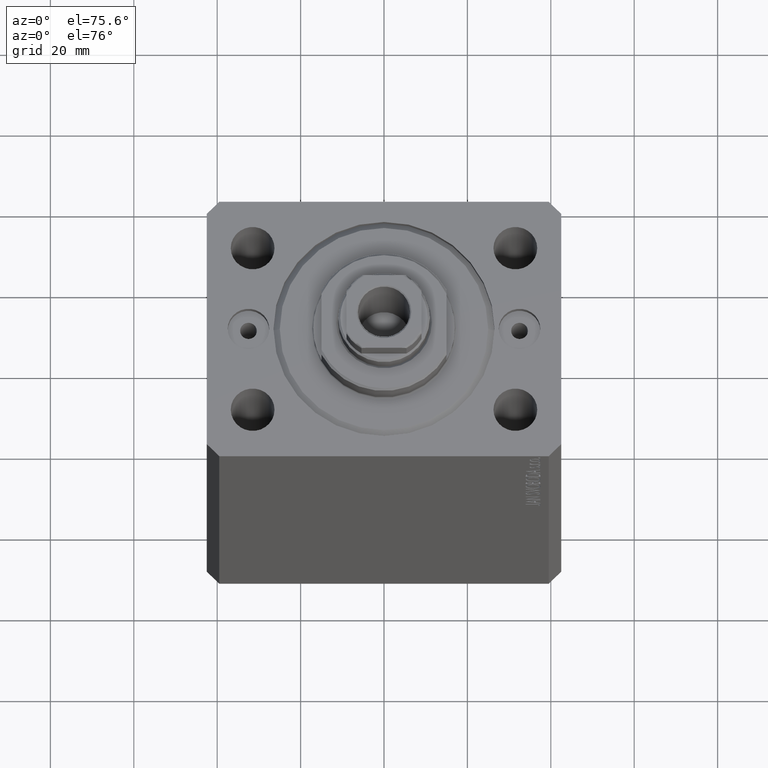
[diagram: clean part render]
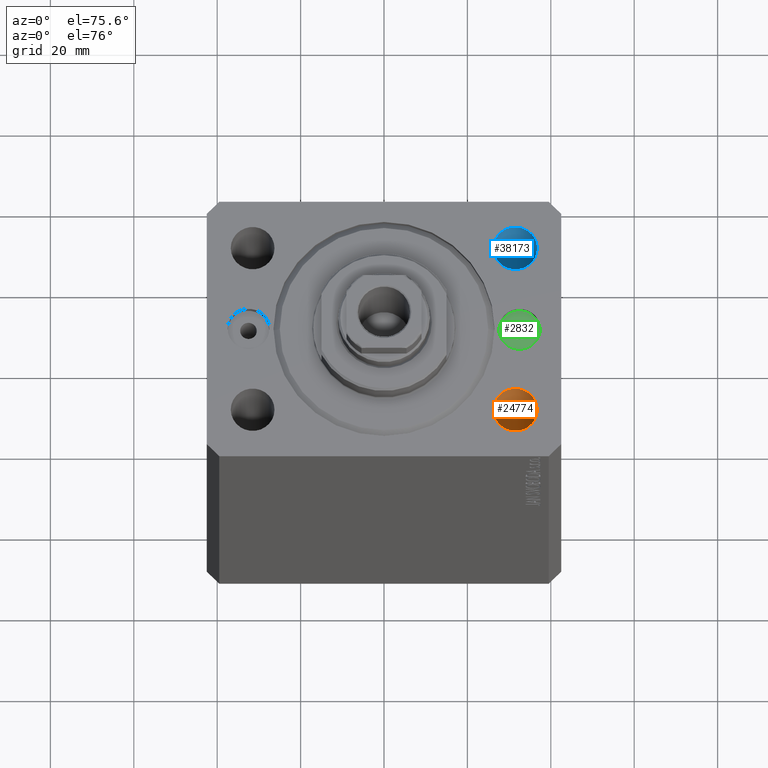
[diagram: same view with three faces highlighted in distinct colors, each labeled with its STEP entity id]
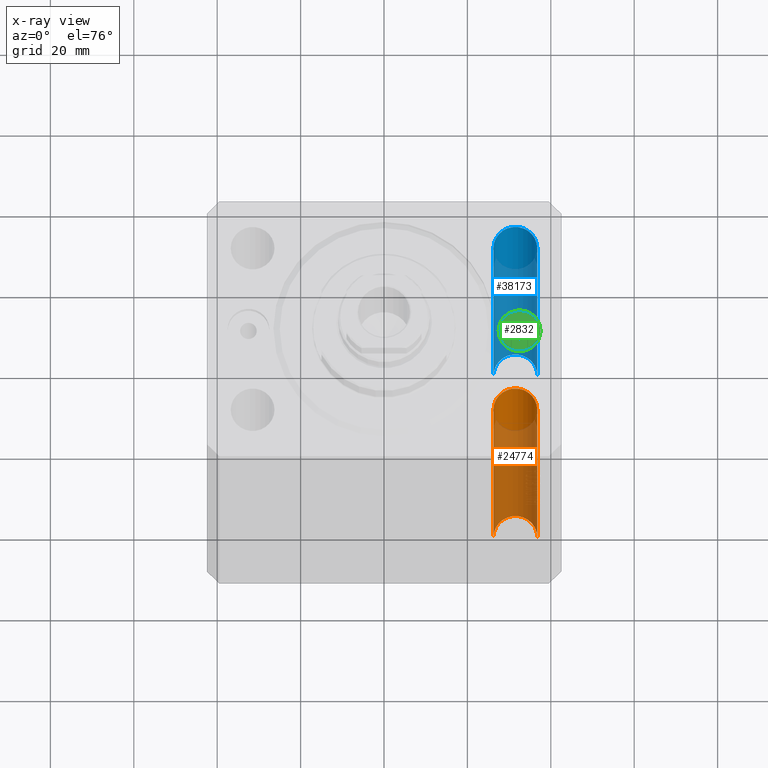
[diagram: x-ray of the same camera — body ghosted, the three highlighted faces saturated]
A machine part, auxiliary view with three faces highlighted in distinct colors.
The next image is the same camera in x-ray (body ghosted, the three faces saturated) — at least one of them is partly hidden behind the body in this view.
Their STEP definitions:

[orange] entity #24774 — the highlighted cylindrical surface (edge-blend (fillet) strip) has radius 5.25 mm, axis along (0, 0, 1).
#197 = DIRECTION ( 'NONE',  ( 1.000000000000000000, 0.000000000000000000, 0.000000000000000000 ) ) ;
#1539 = CARTESIAN_POINT ( 'NONE',  ( 26.24999999999999645, -20.00000000000000355, -123.0000000000000000 ) ) ;
#1737 = DIRECTION ( 'NONE',  ( 1.000000000000000000, 0.000000000000000000, 0.000000000000000000 ) ) ;
#1887 = EDGE_LOOP ( 'NONE', ( #37694, #42213, #8697, #4217 ) ) ;
#2566 = VERTEX_POINT ( 'NONE', #43569 ) ;
#3107 = CARTESIAN_POINT ( 'NONE',  ( 31.49999999999999289, -20.00000000000000355, -123.0000000000000000 ) ) ;
#3392 = CIRCLE ( 'NONE', #43492, 5.249999999999997335 ) ;
#4217 = ORIENTED_EDGE ( 'NONE', *, *, #24132, .T. ) ;
#4663 = VERTEX_POINT ( 'NONE', #25525 ) ;
#5321 = FACE_OUTER_BOUND ( 'NONE', #1887, .T. ) ;
#7698 = LINE ( 'NONE', #20707, #30018 ) ;
#8344 = CARTESIAN_POINT ( 'NONE',  ( 36.74999999999999289, -20.00000000000000355, 0.000000000000000000 ) ) ;
#8477 = DIRECTION ( 'NONE',  ( -0.000000000000000000, -0.000000000000000000, 1.000000000000000000 ) ) ;
#8697 = ORIENTED_EDGE ( 'NONE', *, *, #29724, .T. ) ;
#8698 = CYLINDRICAL_SURFACE ( 'NONE', #11543, 5.249999999999997335 ) ;
#8923 = CARTESIAN_POINT ( 'NONE',  ( 31.49999999999999289, -20.00000000000000355, -137.8492424049174758 ) ) ;
#9036 = DIRECTION ( 'NONE',  ( 0.000000000000000000, 0.000000000000000000, 1.000000000000000000 ) ) ;
#11543 = AXIS2_PLACEMENT_3D ( 'NONE', #8923, #8477, #1737 ) ;
#12734 = DIRECTION ( 'NONE',  ( -0.000000000000000000, -0.000000000000000000, 1.000000000000000000 ) ) ;
#16214 = EDGE_CURVE ( 'NONE', #31899, #4663, #3392, .T. ) ;
#16792 = DIRECTION ( 'NONE',  ( -0.000000000000000000, -0.000000000000000000, -1.000000000000000000 ) ) ;
#19132 = EDGE_CURVE ( 'NONE', #31899, #2566, #7698, .T. ) ;
#20707 = CARTESIAN_POINT ( 'NONE',  ( 26.24999999999999645, -20.00000000000000355, -137.8492424049174758 ) ) ;
#20926 = DIRECTION ( 'NONE',  ( -0.000000000000000000, -0.000000000000000000, 1.000000000000000000 ) ) ;
#23730 = CIRCLE ( 'NONE', #24440, 5.249999999999997335 ) ;
#24132 = EDGE_CURVE ( 'NONE', #32342, #2566, #23730, .T. ) ;
#24440 = AXIS2_PLACEMENT_3D ( 'NONE', #25845, #9036, #39749 ) ;
#24774 = ADVANCED_FACE ( 'NONE', ( #5321 ), #8698, .F. ) ;
#25525 = CARTESIAN_POINT ( 'NONE',  ( 36.74999999999999289, -20.00000000000000355, -123.0000000000000000 ) ) ;
#25845 = CARTESIAN_POINT ( 'NONE',  ( 31.49999999999999289, -20.00000000000000355, 0.000000000000000000 ) ) ;
#27270 = VECTOR ( 'NONE', #12734, 1000.000000000000000 ) ;
#29724 = EDGE_CURVE ( 'NONE', #4663, #32342, #40299, .T. ) ;
#30018 = VECTOR ( 'NONE', #20926, 1000.000000000000000 ) ;
#31899 = VERTEX_POINT ( 'NONE', #1539 ) ;
#32342 = VERTEX_POINT ( 'NONE', #8344 ) ;
#37694 = ORIENTED_EDGE ( 'NONE', *, *, #19132, .F. ) ;
#39749 = DIRECTION ( 'NONE',  ( 1.000000000000000000, 0.000000000000000000, 0.000000000000000000 ) ) ;
#40299 = LINE ( 'NONE', #40742, #27270 ) ;
#40742 = CARTESIAN_POINT ( 'NONE',  ( 36.74999999999999289, -20.00000000000000355, -137.8492424049174758 ) ) ;
#42213 = ORIENTED_EDGE ( 'NONE', *, *, #16214, .T. ) ;
#43492 = AXIS2_PLACEMENT_3D ( 'NONE', #3107, #16792, #197 ) ;
#43569 = CARTESIAN_POINT ( 'NONE',  ( 26.24999999999999645, -20.00000000000000355, 0.000000000000000000 ) ) ;

[blue] entity #38173 — the highlighted cylindrical surface (edge-blend (fillet) strip) has radius 5.25 mm, axis along (0, 0, 1).
#149 = ORIENTED_EDGE ( 'NONE', *, *, #17084, .F. ) ;
#278 = DIRECTION ( 'NONE',  ( 1.000000000000000000, 0.000000000000000000, 0.000000000000000000 ) ) ;
#4096 = VECTOR ( 'NONE', #32451, 1000.000000000000000 ) ;
#7657 = AXIS2_PLACEMENT_3D ( 'NONE', #20237, #30757, #278 ) ;
#9835 = VECTOR ( 'NONE', #37864, 1000.000000000000000 ) ;
#10786 = EDGE_LOOP ( 'NONE', ( #149, #37214, #19000, #40513 ) ) ;
#12138 = DIRECTION ( 'NONE',  ( 1.000000000000000000, 0.000000000000000000, 0.000000000000000000 ) ) ;
#14861 = EDGE_CURVE ( 'NONE', #20549, #19827, #33407, .T. ) ;
#16113 = CYLINDRICAL_SURFACE ( 'NONE', #36042, 5.249999999999997335 ) ;
#16223 = EDGE_CURVE ( 'NONE', #19180, #20549, #30458, .T. ) ;
#16707 = AXIS2_PLACEMENT_3D ( 'NONE', #42846, #29160, #12138 ) ;
#17084 = EDGE_CURVE ( 'NONE', #36103, #19827, #28864, .T. ) ;
#19000 = ORIENTED_EDGE ( 'NONE', *, *, #16223, .T. ) ;
#19180 = VERTEX_POINT ( 'NONE', #37539 ) ;
#19827 = VERTEX_POINT ( 'NONE', #35317 ) ;
#20237 = CARTESIAN_POINT ( 'NONE',  ( 31.50000000000000000, 19.99999999999999289, 0.000000000000000000 ) ) ;
#20381 = CARTESIAN_POINT ( 'NONE',  ( 36.75000000000000000, 19.99999999999999289, 0.000000000000000000 ) ) ;
#20549 = VERTEX_POINT ( 'NONE', #20381 ) ;
#20825 = CARTESIAN_POINT ( 'NONE',  ( 36.75000000000000000, 19.99999999999999289, -137.8492424049174758 ) ) ;
#25915 = CARTESIAN_POINT ( 'NONE',  ( 26.25000000000000355, 19.99999999999999289, -123.0000000000000000 ) ) ;
#26418 = CARTESIAN_POINT ( 'NONE',  ( 31.50000000000000000, 19.99999999999999289, -137.8492424049174758 ) ) ;
#28435 = CARTESIAN_POINT ( 'NONE',  ( 26.25000000000000355, 19.99999999999999289, -137.8492424049174758 ) ) ;
#28864 = LINE ( 'NONE', #28435, #4096 ) ;
#29160 = DIRECTION ( 'NONE',  ( -0.000000000000000000, -0.000000000000000000, -1.000000000000000000 ) ) ;
#30458 = LINE ( 'NONE', #20825, #9835 ) ;
#30757 = DIRECTION ( 'NONE',  ( 0.000000000000000000, 0.000000000000000000, 1.000000000000000000 ) ) ;
#32451 = DIRECTION ( 'NONE',  ( -0.000000000000000000, -0.000000000000000000, 1.000000000000000000 ) ) ;
#33133 = FACE_OUTER_BOUND ( 'NONE', #10786, .T. ) ;
#33407 = CIRCLE ( 'NONE', #7657, 5.249999999999997335 ) ;
#35317 = CARTESIAN_POINT ( 'NONE',  ( 26.25000000000000355, 19.99999999999999289, 0.000000000000000000 ) ) ;
#36042 = AXIS2_PLACEMENT_3D ( 'NONE', #26418, #40098, #43893 ) ;
#36103 = VERTEX_POINT ( 'NONE', #25915 ) ;
#37214 = ORIENTED_EDGE ( 'NONE', *, *, #42032, .T. ) ;
#37539 = CARTESIAN_POINT ( 'NONE',  ( 36.75000000000000000, 19.99999999999999289, -123.0000000000000000 ) ) ;
#37864 = DIRECTION ( 'NONE',  ( -0.000000000000000000, -0.000000000000000000, 1.000000000000000000 ) ) ;
#38173 = ADVANCED_FACE ( 'NONE', ( #33133 ), #16113, .F. ) ;
#40098 = DIRECTION ( 'NONE',  ( -0.000000000000000000, -0.000000000000000000, 1.000000000000000000 ) ) ;
#40513 = ORIENTED_EDGE ( 'NONE', *, *, #14861, .T. ) ;
#42032 = EDGE_CURVE ( 'NONE', #36103, #19180, #43902, .T. ) ;
#42846 = CARTESIAN_POINT ( 'NONE',  ( 31.50000000000000000, 19.99999999999999289, -123.0000000000000000 ) ) ;
#43893 = DIRECTION ( 'NONE',  ( 1.000000000000000000, 0.000000000000000000, 0.000000000000000000 ) ) ;
#43902 = CIRCLE ( 'NONE', #16707, 5.249999999999997335 ) ;

[green] entity #2832 — the highlighted planar face has unit normal (0, 0, 1).
#1086 = DIRECTION ( 'NONE',  ( 1.000000000000000000, 0.000000000000000000, 0.000000000000000000 ) ) ;
#1381 = DIRECTION ( 'NONE',  ( 1.000000000000000000, 0.000000000000000000, 0.000000000000000000 ) ) ;
#1734 = ORIENTED_EDGE ( 'NONE', *, *, #14517, .F. ) ;
#2832 = ADVANCED_FACE ( 'NONE', ( #18649, #22457 ), #28951, .T. ) ;
#3836 = VERTEX_POINT ( 'NONE', #42146 ) ;
#4119 = DIRECTION ( 'NONE',  ( 0.000000000000000000, 0.000000000000000000, 1.000000000000000000 ) ) ;
#4657 = ORIENTED_EDGE ( 'NONE', *, *, #17884, .F. ) ;
#6768 = AXIS2_PLACEMENT_3D ( 'NONE', #36359, #42637, #1381 ) ;
#7400 = AXIS2_PLACEMENT_3D ( 'NONE', #8053, #15221, #8713 ) ;
#7722 = CARTESIAN_POINT ( 'NONE',  ( 32.50000000000000000, 0.000000000000000000, -1.899999999999999911 ) ) ;
#8036 = DIRECTION ( 'NONE',  ( 0.000000000000000000, 0.000000000000000000, 1.000000000000000000 ) ) ;
#8053 = CARTESIAN_POINT ( 'NONE',  ( 32.50000000000000000, 0.000000000000000000, -1.899999999999999911 ) ) ;
#8713 = DIRECTION ( 'NONE',  ( 1.000000000000000000, 0.000000000000000000, 0.000000000000000000 ) ) ;
#11302 = DIRECTION ( 'NONE',  ( 1.000000000000000000, 0.000000000000000000, 0.000000000000000000 ) ) ;
#14517 = EDGE_CURVE ( 'NONE', #3836, #41607, #42699, .T. ) ;
#15221 = DIRECTION ( 'NONE',  ( 0.000000000000000000, -0.000000000000000000, -1.000000000000000000 ) ) ;
#15697 = CIRCLE ( 'NONE', #17843, 2.000000000000001776 ) ;
#15816 = CARTESIAN_POINT ( 'NONE',  ( 34.50000000000000000, 0.000000000000000000, -1.899999999999999911 ) ) ;
#17642 = AXIS2_PLACEMENT_3D ( 'NONE', #7722, #38431, #28550 ) ;
#17843 = AXIS2_PLACEMENT_3D ( 'NONE', #34848, #4119, #11302 ) ;
#17884 = EDGE_CURVE ( 'NONE', #27043, #37433, #15697, .T. ) ;
#18649 = FACE_BOUND ( 'NONE', #26164, .T. ) ;
#18710 = AXIS2_PLACEMENT_3D ( 'NONE', #27986, #8036, #1086 ) ;
#22457 = FACE_OUTER_BOUND ( 'NONE', #36702, .T. ) ;
#24357 = ORIENTED_EDGE ( 'NONE', *, *, #42312, .F. ) ;
#24562 = EDGE_CURVE ( 'NONE', #37433, #27043, #33739, .T. ) ;
#26164 = EDGE_LOOP ( 'NONE', ( #4657, #42219 ) ) ;
#26720 = CIRCLE ( 'NONE', #7400, 4.999999999999997335 ) ;
#27043 = VERTEX_POINT ( 'NONE', #15816 ) ;
#27986 = CARTESIAN_POINT ( 'NONE',  ( 32.50000000000000000, 0.000000000000000000, -1.899999999999999911 ) ) ;
#28550 = DIRECTION ( 'NONE',  ( 1.000000000000000000, 0.000000000000000000, 0.000000000000000000 ) ) ;
#28951 = PLANE ( 'NONE',  #6768 ) ;
#33739 = CIRCLE ( 'NONE', #18710, 2.000000000000001776 ) ;
#34848 = CARTESIAN_POINT ( 'NONE',  ( 32.50000000000000000, 0.000000000000000000, -1.899999999999999911 ) ) ;
#36359 = CARTESIAN_POINT ( 'NONE',  ( 0.000000000000000000, 0.000000000000000000, -1.899999999999999911 ) ) ;
#36576 = CARTESIAN_POINT ( 'NONE',  ( 30.50000000000000000, 2.449293598294711345E-16, -1.899999999999999911 ) ) ;
#36702 = EDGE_LOOP ( 'NONE', ( #24357, #1734 ) ) ;
#37433 = VERTEX_POINT ( 'NONE', #36576 ) ;
#38431 = DIRECTION ( 'NONE',  ( 0.000000000000000000, -0.000000000000000000, -1.000000000000000000 ) ) ;
#41132 = CARTESIAN_POINT ( 'NONE',  ( 37.50000000000000000, 0.000000000000000000, -1.899999999999999911 ) ) ;
#41607 = VERTEX_POINT ( 'NONE', #41132 ) ;
#42146 = CARTESIAN_POINT ( 'NONE',  ( 27.50000000000000355, 6.123233995736762338E-16, -1.899999999999999911 ) ) ;
#42219 = ORIENTED_EDGE ( 'NONE', *, *, #24562, .F. ) ;
#42312 = EDGE_CURVE ( 'NONE', #41607, #3836, #26720, .T. ) ;
#42637 = DIRECTION ( 'NONE',  ( -0.000000000000000000, 0.000000000000000000, 1.000000000000000000 ) ) ;
#42699 = CIRCLE ( 'NONE', #17642, 4.999999999999997335 ) ;